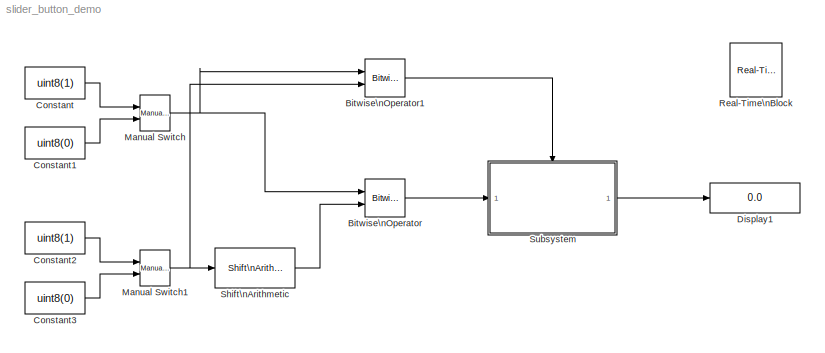
MODEL slider_button_demo
KIND model
BLOCK [Reference] Bitwise\nOperator  REF=simulink/Logic and Bit\nOperations/Bitwise\nOperator
  BitMask = bin2dec('00000011')
  BitMaskRealWorld = Stored Integer
  NumInputPorts = 2
  Ports = [2, 1]
  SourceBlock = simulink/Logic and Bit\nOperations/Bitwise\nOperator
  SourceType = Bitwise Operator
  UseBitMask = off
  logicop = OR
BLOCK [Reference] Bitwise\nOperator1  REF=simulink/Logic and Bit\nOperations/Bitwise\nOperator
  BitMask = bin2dec('00000011')
  BitMaskRealWorld = Stored Integer
  NumInputPorts = 2
  Ports = [2, 1]
  SourceBlock = simulink/Logic and Bit\nOperations/Bitwise\nOperator
  SourceType = Bitwise Operator
  UseBitMask = off
  logicop = OR
BLOCK [Constant] Constant
  OutDataType = fixdt(1, 16)
  OutScaling = 2^0
  SampleTime = .1
  Value = uint8(1)
BLOCK [Constant] Constant1
  OutDataType = fixdt(1, 16)
  OutScaling = 2^0
  SampleTime = .1
  Value = uint8(0)
BLOCK [Constant] Constant2
  OutDataType = fixdt(1, 16)
  OutScaling = 2^0
  SampleTime = .1
  Value = uint8(1)
BLOCK [Constant] Constant3
  OutDataType = fixdt(1, 16)
  OutScaling = 2^0
  SampleTime = .1
  Value = uint8(0)
BLOCK [Display] Display1
  Decimation = 1
  Lockdown = off
  Ports = [1]
BLOCK [Reference] Manual Switch  REF=simulink/Signal\nRouting/Manual Switch
  FunctionWithSeparateData = off
  Ports = [2, 1]
  RTWMemSecDataConstants = Inherit from model
  RTWMemSecDataInternal = Inherit from model
  RTWMemSecDataParameters = Inherit from model
  RTWMemSecFuncExecute = Inherit from model
  RTWMemSecFuncInitTerm = Inherit from model
  ShowPortLabels = FromPortIcon
  SourceBlock = simulink/Signal\nRouting/Manual Switch
  SourceType = Manual Switch
  SystemSampleTime = -1
  action = 0
  sw = 0
  varsize = off
BLOCK [Reference] Manual Switch1  REF=simulink/Signal\nRouting/Manual Switch
  FunctionWithSeparateData = off
  Ports = [2, 1]
  RTWMemSecDataConstants = Inherit from model
  RTWMemSecDataInternal = Inherit from model
  RTWMemSecDataParameters = Inherit from model
  RTWMemSecFuncExecute = Inherit from model
  RTWMemSecFuncInitTerm = Inherit from model
  ShowPortLabels = FromPortIcon
  SourceBlock = simulink/Signal\nRouting/Manual Switch
  SourceType = Manual Switch
  SystemSampleTime = -1
  action = 0
  sw = 0
  varsize = off
BLOCK [Reference] Real-Time\nBlock  REF=waijung_addon_module/Real-Time\nBlock  (lib defined in slx_cf988d149c1b)
  Ports = []
  Priority = 0
  SourceBlock = waijung_addon_module/Real-Time\nBlock
  SourceType = waijung_rtstep
  sampletime = -1
  setting = Default
BLOCK [Reference] Shift\nArithmetic  REF=simulink/Logic and Bit\nOperations/Shift\nArithmetic
  FunctionWithSeparateData = off
  Ports = [1, 1]
  RTWMemSecDataConstants = Inherit from model
  RTWMemSecDataInternal = Inherit from model
  RTWMemSecDataParameters = Inherit from model
  RTWMemSecFuncExecute = Inherit from model
  RTWMemSecFuncInitTerm = Inherit from model
  ShowPortLabels = FromPortIcon
  SourceBlock = simulink/Logic and Bit\nOperations/Shift\nArithmetic
  SourceType = Shift Arithmetic
  SystemSampleTime = -1
  nBinPtShiftRight = 0
  nBitShiftRight = -1
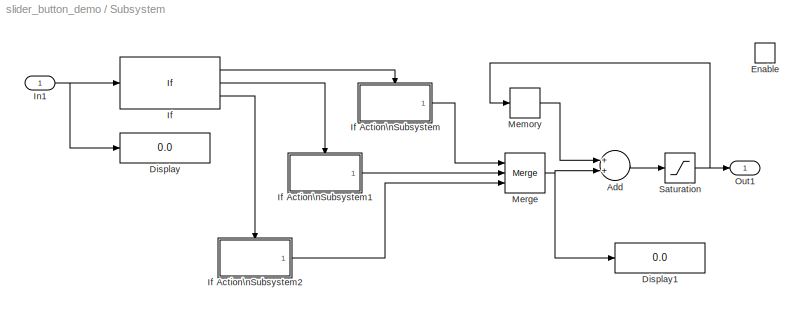
BLOCK [SubSystem] Subsystem
  FunctionWithSeparateData = off
  MaskHideContents = off
  MinAlgLoopOccurrences = off
  Opaque = off
  Ports = [1, 1, 1]
  PropExecContextOutsideSubsystem = off
  RTWSystemCode = Auto
  RequestExecContextInheritance = off
BLOCK [Sum] Subsystem/Add
  InputSameDT = off
  OutDataType = fixdt(1, 16)
  OutDataTypeMode = Inherit via internal rule
  OutDataTypeStr = Inherit: Inherit via internal rule
  OutScaling = 2^-10
  Ports = [2, 1]
  SaturateOnIntegerOverflow = off
BLOCK [Display] Subsystem/Display
  Decimation = 1
  Lockdown = off
  Ports = [1]
BLOCK [Display] Subsystem/Display1
  Decimation = 1
  Lockdown = off
  Ports = [1]
BLOCK [EnablePort] Subsystem/Enable
  Ports = []
BLOCK [If] Subsystem/If
  ElseIfExpressions = u1 == 2
  IfExpression = u1 == 1
  Ports = [1, 3]
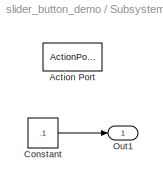
BLOCK [SubSystem] Subsystem/If Action\nSubsystem
  FunctionWithSeparateData = off
  MaskHideContents = off
  MinAlgLoopOccurrences = off
  Opaque = off
  Ports = [0, 1, 0, 0, 0, 0, 0, 1]
  PropExecContextOutsideSubsystem = off
  RTWSystemCode = Auto
  RequestExecContextInheritance = off
  TreatAsAtomicUnit = on
BLOCK [ActionPort] Subsystem/If Action\nSubsystem/Action Port
  ActionType = then
BLOCK [Constant] Subsystem/If Action\nSubsystem/Constant
  OutDataType = fixdt(1, 16)
  OutScaling = 2^0
  Value = .1
BLOCK [Outport] Subsystem/If Action\nSubsystem/Out1
  IconDisplay = Port number
  OutDataType = fixdt(1, 16)
  OutScaling = 2^0
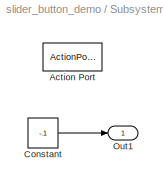
BLOCK [SubSystem] Subsystem/If Action\nSubsystem1
  FunctionWithSeparateData = off
  MaskHideContents = off
  MinAlgLoopOccurrences = off
  Opaque = off
  Ports = [0, 1, 0, 0, 0, 0, 0, 1]
  PropExecContextOutsideSubsystem = off
  RTWSystemCode = Auto
  RequestExecContextInheritance = off
  TreatAsAtomicUnit = on
BLOCK [ActionPort] Subsystem/If Action\nSubsystem1/Action Port
  ActionType = elseif
BLOCK [Constant] Subsystem/If Action\nSubsystem1/Constant
  OutDataType = fixdt(1, 16)
  OutScaling = 2^0
  Value = -.1
BLOCK [Outport] Subsystem/If Action\nSubsystem1/Out1
  IconDisplay = Port number
  OutDataType = fixdt(1, 16)
  OutScaling = 2^0
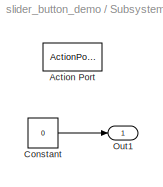
BLOCK [SubSystem] Subsystem/If Action\nSubsystem2
  FunctionWithSeparateData = off
  MaskHideContents = off
  MinAlgLoopOccurrences = off
  Opaque = off
  Ports = [0, 1, 0, 0, 0, 0, 0, 1]
  PropExecContextOutsideSubsystem = off
  RTWSystemCode = Auto
  RequestExecContextInheritance = off
  TreatAsAtomicUnit = on
BLOCK [ActionPort] Subsystem/If Action\nSubsystem2/Action Port
  ActionType = else
BLOCK [Constant] Subsystem/If Action\nSubsystem2/Constant
  OutDataType = fixdt(1, 16)
  OutScaling = 2^0
  Value = 0
BLOCK [Outport] Subsystem/If Action\nSubsystem2/Out1
  IconDisplay = Port number
  OutDataType = fixdt(1, 16)
  OutScaling = 2^0
BLOCK [Inport] Subsystem/In1
  IconDisplay = Port number
BLOCK [Memory] Subsystem/Memory
  InheritSampleTime = on
BLOCK [Merge] Subsystem/Merge
  Inputs = 3
  Ports = [3, 1]
BLOCK [Outport] Subsystem/Out1
  IconDisplay = Port number
BLOCK [Saturate] Subsystem/Saturation
  LowerLimit = -13
  OutDataType = fixdt(1, 16)
  OutScaling = 2^0
  UpperLimit = 13
LINE Bitwise\nOperator1:1 -> Subsystem:enable
LINE Bitwise\nOperator:1 -> Subsystem:1
LINE Constant1:1 -> Manual Switch:2
LINE Constant2:1 -> Manual Switch1:1
LINE Constant3:1 -> Manual Switch1:2
LINE Constant:1 -> Manual Switch:1
NET Manual Switch1:1 -> Bitwise\nOperator1:2, Shift\nArithmetic:1
NET Manual Switch:1 -> Bitwise\nOperator1:1, Bitwise\nOperator:1
LINE Shift\nArithmetic:1 -> Bitwise\nOperator:2
LINE Subsystem/Add:1 -> Subsystem/Saturation:1
LINE Subsystem/If Action\nSubsystem/Constant:1 -> Subsystem/If Action\nSubsystem/Out1:1
LINE Subsystem/If Action\nSubsystem1/Constant:1 -> Subsystem/If Action\nSubsystem1/Out1:1
LINE Subsystem/If Action\nSubsystem1:1 -> Subsystem/Merge:2
LINE Subsystem/If Action\nSubsystem2/Constant:1 -> Subsystem/If Action\nSubsystem2/Out1:1
LINE Subsystem/If Action\nSubsystem2:1 -> Subsystem/Merge:3
LINE Subsystem/If Action\nSubsystem:1 -> Subsystem/Merge:1
LINE Subsystem/If:1 -> Subsystem/If Action\nSubsystem:ifaction
LINE Subsystem/If:2 -> Subsystem/If Action\nSubsystem1:ifaction
LINE Subsystem/If:3 -> Subsystem/If Action\nSubsystem2:ifaction
NET Subsystem/In1:1 -> Subsystem/Display:1, Subsystem/If:1
LINE Subsystem/Memory:1 -> Subsystem/Add:1
NET Subsystem/Merge:1 -> Subsystem/Add:2, Subsystem/Display1:1
NET Subsystem/Saturation:1 -> Subsystem/Memory:1, Subsystem/Out1:1
LINE Subsystem:1 -> Display1:1
note: NET lines group one-source signal fan-out (src -> all destinations, sorted); 1:1 wires keep LINE
